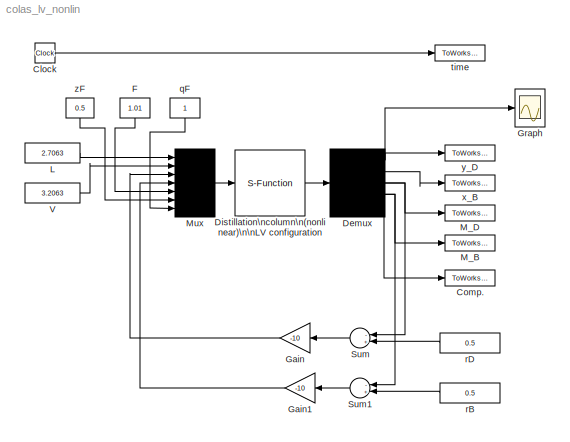
MODEL colas_lv_nonlin
KIND model
CONFIG AbsTol = 1e-5
CONFIG FixedStep = auto
CONFIG MaxStep = 1
CONFIG RelTol = 1e-5
CONFIG Solver = ode45
CONFIG StartTime = 0.0
CONFIG StopTime = 100
BLOCK [Clock] Clock
BLOCK [ToWorkspace] Comp.
  Buffer = 1000
  Decimation = 1
  SampleTime = 0
  VariableName = Comp
BLOCK [Demux] Demux
  Outputs = [1,1,1,1,41]
  Ports = [1, 5, 0, 0, 0]
BLOCK [S-Function] Distillation\ncolumn\n(nonlinear)\n\nLV configuration
  FunctionName = colas
  Ports = [1, 1, 0, 0, 0]
BLOCK [Constant] F
  Value = 1.01
BLOCK [Gain] Gain
  Gain = -10
BLOCK [Gain] Gain1
  Gain = -10
BLOCK [Scope] Graph
  Decimation = 1
  Floating = off
  Grid = on
  LimitMaxRows = on
  MaxRows = 5000
  Ports = [1, 0, 0, 0, 0]
  SampleInput = off
  SampleTime = 0
  SaveName = ScopeData
  SaveToWorkspace = off
  TickLabels = on
  TimeRange = 50
  YMax = 1
  YMin = 0.98
  ZoomMode = on
BLOCK [Constant] L
  Value = 2.7063
BLOCK [ToWorkspace] M_B
  Buffer = 1000
  Decimation = 1
  SampleTime = 0
  VariableName = y4
BLOCK [ToWorkspace] M_D
  Buffer = 1000
  Decimation = 1
  SampleTime = 0
  VariableName = y3
BLOCK [Mux] Mux
  Inputs = 7
  Ports = [7, 1, 0, 0, 0]
BLOCK [Sum] Sum
  Inputs = -+
  Ports = [2, 1, 0, 0, 0]
BLOCK [Sum] Sum1
  Inputs = -+
  Ports = [2, 1, 0, 0, 0]
BLOCK [Constant] V
  Value = 3.2063
BLOCK [Constant] qF
  Value = 1
BLOCK [Constant] rB
  Value = 0.5
BLOCK [Constant] rD
  Value = 0.5
BLOCK [ToWorkspace] time
  Buffer = 1000
  Decimation = 1
  SampleTime = 0
  VariableName = t
BLOCK [ToWorkspace] x_B
  Buffer = 1000
  Decimation = 1
  SampleTime = 0
  VariableName = y2
BLOCK [ToWorkspace] y_D
  Buffer = 1000
  Decimation = 1
  SampleTime = 0
  VariableName = y1
BLOCK [Constant] zF
  Value = 0.5
LINE Clock:1 -> time:1
NET Demux:1 -> Graph:1, y_D:1
LINE Demux:2 -> x_B:1
NET Demux:3 -> M_D:1, Sum:1
NET Demux:4 -> M_B:1, Sum1:1
LINE Demux:5 -> Comp.:1
LINE Distillation\ncolumn\n(nonlinear)\n\nLV configuration:1 -> Demux:1
LINE F:1 -> Mux:5
LINE Gain1:1 -> Mux:4
LINE Gain:1 -> Mux:3
LINE L:1 -> Mux:1
LINE Mux:1 -> Distillation\ncolumn\n(nonlinear)\n\nLV configuration:1
LINE Sum1:1 -> Gain1:1
LINE Sum:1 -> Gain:1
LINE V:1 -> Mux:2
LINE qF:1 -> Mux:7
LINE rB:1 -> Sum1:2
LINE rD:1 -> Sum:2
LINE zF:1 -> Mux:6
note: NET lines group one-source signal fan-out (src -> all destinations, sorted); 1:1 wires keep LINE
